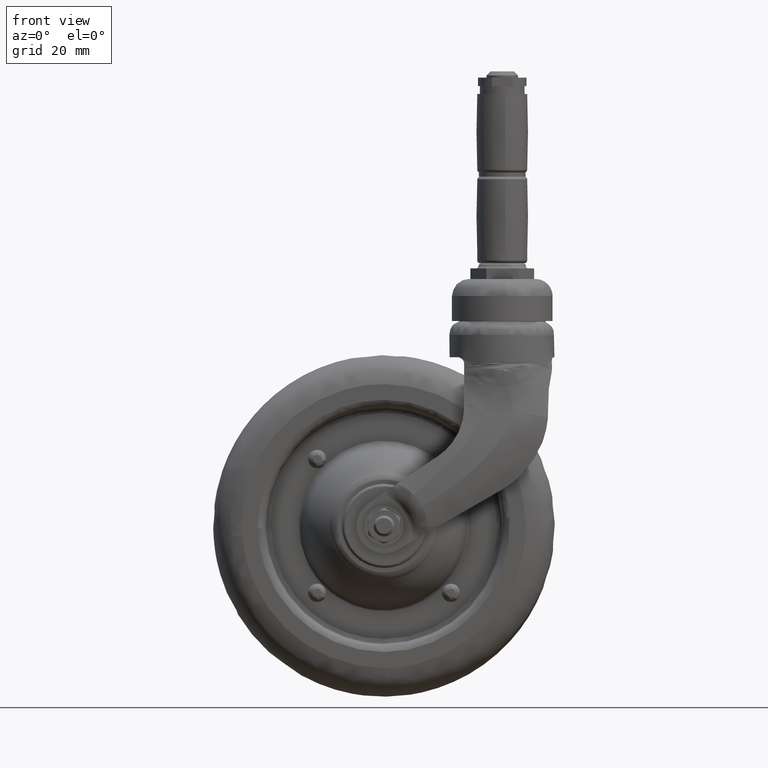
[diagram: clean part render]
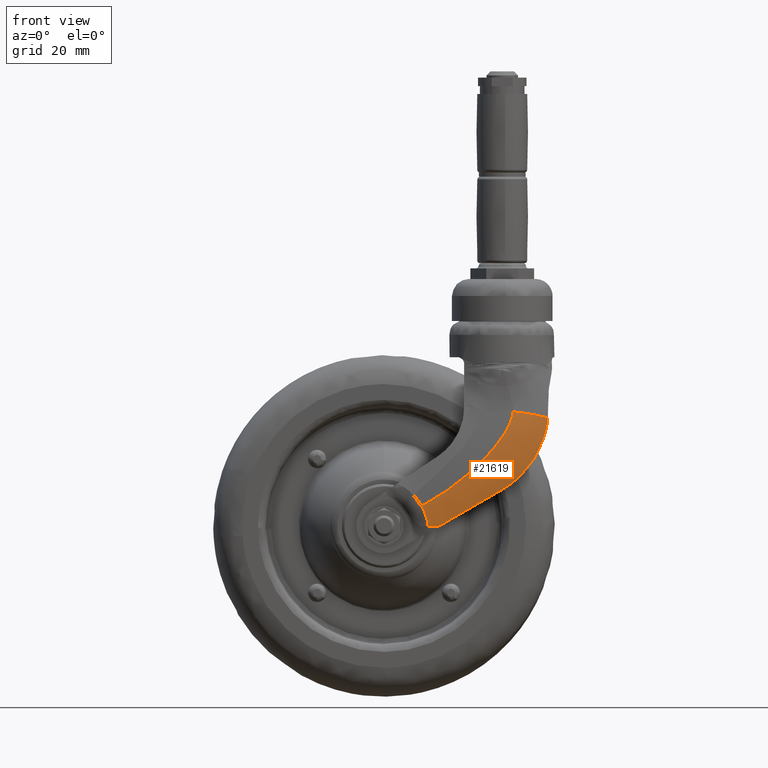
[diagram: same view with one face highlighted and labeled with its STEP entity id]
A machine part, front view. The second image highlights one B-rep face of the part: STEP entity #21619.
In plain terms, the highlighted face is a freeform B-spline surface patch.
Its self-contained STEP definition (entity closure, byte-faithful):
#19432=CARTESIAN_POINT('',(20.415976594756302,-23.865052486163901,-0.337185914948546));
#19433=VERTEX_POINT('',#19432);
#19484=CARTESIAN_POINT('',(45.0,-21.160551298550551,13.856406867544759));
#19485=VERTEX_POINT('',#19484);
#19491=CARTESIAN_POINT('',(20.415976594756302,-23.865052486163901,-0.337185914948546));
#19492=CARTESIAN_POINT('',(21.449715460071388,-23.866348664602832,0.259643507797667));
#19493=CARTESIAN_POINT('',(22.482211063196750,-23.852576439193459,0.855755132770276));
#19494=CARTESIAN_POINT('',(24.545028476371961,-23.798685500758559,2.046723342676876));
#19495=CARTESIAN_POINT('',(25.575345488718430,-23.758508639304551,2.641577157655014));
#19496=CARTESIAN_POINT('',(27.633883661476322,-23.652753079528740,3.830074746910936));
#19497=CARTESIAN_POINT('',(28.662103387305919,-23.587156993999109,4.423717692932510));
#19498=CARTESIAN_POINT('',(30.716391954542519,-23.429895989397650,5.609761771253259));
#19499=CARTESIAN_POINT('',(31.742460494124462,-23.338227412189880,6.202162729293643));
#19500=CARTESIAN_POINT('',(33.792278459912197,-23.126782480372430,7.385625704618679));
#19501=CARTESIAN_POINT('',(34.816028264834230,-23.007010715823281,7.976687940555241));
#19502=CARTESIAN_POINT('',(36.860965695597777,-22.736413440065011,9.157333137620302));
#19503=CARTESIAN_POINT('',(37.882153621946870,-22.585591571023318,9.746916272246921));
#19504=CARTESIAN_POINT('',(39.921572445646902,-22.248108484287719,10.924375299981801));
#19505=CARTESIAN_POINT('',(40.939804667803500,-22.061463323308640,11.512251957966980));
#19506=CARTESIAN_POINT('',(42.972743689713397,-21.645444694412451,12.685969870327691));
#19507=CARTESIAN_POINT('',(43.987453115458912,-21.416103053660269,13.271812640820540));
#19508=CARTESIAN_POINT('',(45.0,-21.160551298550551,13.856406867544759));
#19509=B_SPLINE_CURVE_WITH_KNOTS('',3,(#19491,#19492,#19493,#19494,#19495,#19496,#19497,#19498,#19499,#19500,#19501,#19502,#19503,#19504,#19505,#19506,#19507,#19508),.UNSPECIFIED.,.F.,.U.,(4,2,2,2,2,2,2,2,4),(0.0,0.125000000000000,0.250000000000000,0.375000000000000,0.500000000000000,0.625000000000000,0.750000000000000,0.875000000000000,1.0),.UNSPECIFIED.);
#19510=EDGE_CURVE('',#19433,#19485,#19509,.T.);
#19613=CARTESIAN_POINT('',(62.366952196205098,-16.766161363018700,41.118420051766300));
#19614=VERTEX_POINT('',#19613);
#19615=CARTESIAN_POINT('',(62.366952196205098,-16.766161363018700,41.118420051766300));
#19616=CARTESIAN_POINT('',(62.244645255823087,-17.021816798708020,39.719717770106023));
#19617=CARTESIAN_POINT('',(62.038887086209911,-17.225509760171860,38.334175742820769));
#19618=CARTESIAN_POINT('',(61.462632743878160,-17.570646936777720,35.594105800714331));
#19619=CARTESIAN_POINT('',(61.092153567125180,-17.712142712493002,34.239580322402787));
#19620=CARTESIAN_POINT('',(60.524323237998701,-17.872985926071969,32.569080850117658));
#19621=CARTESIAN_POINT('',(60.405507374761669,-17.904340622516600,32.236115363345561));
#19622=CARTESIAN_POINT('',(60.157275904479782,-17.965947855213201,31.572542430610220));
#19623=CARTESIAN_POINT('',(60.027660522471876,-17.996242128587141,31.241471414229569));
#19624=CARTESIAN_POINT('',(59.624979782341534,-18.085756753492479,30.257291142585888));
#19625=CARTESIAN_POINT('',(59.337760998762583,-18.143729260679908,29.612139452461300));
#19626=CARTESIAN_POINT('',(58.421197052905782,-18.318403385870020,27.709410261967822));
#19627=CARTESIAN_POINT('',(57.737117229612473,-18.436051079628740,26.484476661684472));
#19628=CARTESIAN_POINT('',(56.225960573782963,-18.699639368886888,24.122731968265590));
#19629=CARTESIAN_POINT('',(55.398900742132518,-18.845563771771680,22.985908987897201));
#19630=CARTESIAN_POINT('',(54.386519514185103,-19.036821740594291,21.758674543617161));
#19631=CARTESIAN_POINT('',(54.272809389235931,-19.058460918669549,21.622942202218550));
#19632=CARTESIAN_POINT('',(54.043861668669607,-19.102368167577140,21.353821506481172));
#19633=CARTESIAN_POINT('',(53.697934956014002,-19.169211495386399,20.953389013031991));
#19634=CARTESIAN_POINT('',(53.344577686781683,-19.239089345251319,20.562624638833402));
#19635=CARTESIAN_POINT('',(52.628148095656300,-19.383071786326841,19.793806369053311));
#19636=CARTESIAN_POINT('',(52.137586125143812,-19.484712237918689,19.298199320140260));
#19637=CARTESIAN_POINT('',(50.628194978329802,-19.807408145288779,17.861078559464548));
#19638=CARTESIAN_POINT('',(49.571831095539551,-20.046460344324831,16.969122070734400));
#19639=CARTESIAN_POINT('',(47.360681807768252,-20.570874971327690,15.314918088860820));
#19640=CARTESIAN_POINT('',(46.205912356221283,-20.856196972272251,14.552640691028220));
#19641=CARTESIAN_POINT('',(45.0,-21.160551298550551,13.856406867544759));
#19642=B_SPLINE_CURVE_WITH_KNOTS('',3,(#19615,#19616,#19617,#19618,#19619,#19620,#19621,#19622,#19623,#19624,#19625,#19626,#19627,#19628,#19629,#19630,#19631,#19632,#19633,#19634,#19635,#19636,#19637,#19638,#19639,#19640,#19641),.UNSPECIFIED.,.F.,.U.,(4,2,2,2,2,2,2,2,2,1,2,2,2,4),(0.0,0.124999999999999,0.249999999999998,0.281249999999998,0.312499999999998,0.374999999999999,0.499999999999999,0.625000000000000,0.640625000000000,0.656250000000000,0.687500000000000,0.750000000000000,0.875000000000000,1.0),.UNSPECIFIED.);
#19643=EDGE_CURVE('',#19614,#19485,#19642,.T.);
#21055=CARTESIAN_POINT('',(14.340232834005880,-25.932466987408350,7.506909757720430));
#21056=VERTEX_POINT('',#21055);
#21172=CARTESIAN_POINT('',(16.824663103213801,-24.679304129174000,-0.174273375091634));
#21173=VERTEX_POINT('',#21172);
#21187=CARTESIAN_POINT('',(14.340232834005899,-25.932466987408301,7.506909757720440));
#21188=CARTESIAN_POINT('',(14.674780783568490,-25.963658045048419,6.899382182002590));
#21189=CARTESIAN_POINT('',(14.980524010004279,-25.959381745148281,6.281909699237430));
#21190=CARTESIAN_POINT('',(15.534024405093669,-25.881890017400750,5.026773156759320));
#21191=CARTESIAN_POINT('',(15.781819271270400,-25.808674866862500,4.389125334215335));
#21192=CARTESIAN_POINT('',(16.051224405667892,-25.673942398282641,3.577687815009604));
#21193=CARTESIAN_POINT('',(16.103149369618670,-25.644775362143360,3.414404979523405));
#21194=CARTESIAN_POINT('',(16.202220418715580,-25.582436884776818,3.088100612958030));
#21195=CARTESIAN_POINT('',(16.249398188176830,-25.549261897912611,2.925010325648850));
#21196=CARTESIAN_POINT('',(16.383732945858231,-25.443863311364229,2.435861313877232));
#21197=CARTESIAN_POINT('',(16.463708690874849,-25.365768799985648,2.109927207219569));
#21198=CARTESIAN_POINT('',(16.603440438370690,-25.194609951814108,1.457991198874909));
#21199=CARTESIAN_POINT('',(16.663194323718290,-25.101544917140409,1.131989056794355));
#21200=CARTESIAN_POINT('',(16.760884761371301,-24.901052978743749,0.479431176603738));
#21201=CARTESIAN_POINT('',(16.798826494653131,-24.793624880434439,0.152876805476283));
#21202=CARTESIAN_POINT('',(16.824663103213801,-24.679304129174000,-0.174273375091634));
#21203=B_SPLINE_CURVE_WITH_KNOTS('',3,(#21187,#21188,#21189,#21190,#21191,#21192,#21193,#21194,#21195,#21196,#21197,#21198,#21199,#21200,#21201,#21202),.UNSPECIFIED.,.F.,.U.,(4,2,2,2,2,2,2,4),(0.0,0.249999999999999,0.499999999999998,0.562499999999998,0.624999999999998,0.749999999999999,0.874999999999999,1.0),.UNSPECIFIED.);
#21204=EDGE_CURVE('',#21056,#21173,#21203,.T.);
#21299=CARTESIAN_POINT('',(49.053775367557549,-21.404281912199661,43.729306900880097));
#21300=CARTESIAN_POINT('',(49.045030356948196,-21.422148904308084,43.639481247532878));
#21301=CARTESIAN_POINT('',(49.036285364457065,-21.440015859399050,43.549655780289591));
#21302=CARTESIAN_POINT('',(49.000048615127376,-21.514051414440697,43.177444718562711));
#21303=CARTESIAN_POINT('',(48.960704400790597,-21.569116417163400,42.898061861122727));
#21304=CARTESIAN_POINT('',(48.862685943523843,-21.677324761296351,42.344156956340122));
#21305=CARTESIAN_POINT('',(48.804003090708314,-21.730467806253930,42.069635241636803));
#21306=CARTESIAN_POINT('',(48.603766507784691,-21.887324678240674,41.252129858078320));
#21307=CARTESIAN_POINT('',(48.438296080089607,-21.988479713324132,40.715151785363027));
#21308=CARTESIAN_POINT('',(48.154379220221990,-22.135885972926932,39.918679674745576));
#21309=CARTESIAN_POINT('',(48.053535498907110,-22.184364897322986,39.654319868288937));
#21310=CARTESIAN_POINT('',(47.842760803880196,-22.279261186598809,39.132192440908696));
#21311=CARTESIAN_POINT('',(47.732689251293976,-22.325760910667771,38.873987126768888));
#21312=CARTESIAN_POINT('',(47.390187309364926,-22.462688266435332,38.106875542315045));
#21313=CARTESIAN_POINT('',(47.145553823963553,-22.550556299806296,37.605422384662852));
#21314=CARTESIAN_POINT('',(46.630182313885712,-22.720500154276639,36.618477119529814));
#21315=CARTESIAN_POINT('',(46.359400221071027,-22.802569692533389,36.133012668968540));
#21316=CARTESIAN_POINT('',(45.795924576896894,-22.961621957313501,35.175494184184494));
#21317=CARTESIAN_POINT('',(45.503209953883413,-23.038601720132320,34.703453056391105));
#21318=CARTESIAN_POINT('',(44.898838584020510,-23.187997132483819,33.770971229677393));
#21319=CARTESIAN_POINT('',(44.587170742214923,-23.260411252220521,33.310537089473854));
#21320=CARTESIAN_POINT('',(43.947095339896357,-23.401080879923551,32.399924872842909));
#21321=CARTESIAN_POINT('',(43.618423400884311,-23.469374667944592,31.949458835483068));
#21322=CARTESIAN_POINT('',(42.616650175983338,-23.667232976866252,30.620626252856738));
#21323=CARTESIAN_POINT('',(41.925758699194638,-23.790312352846485,29.761489857729973));
#21324=CARTESIAN_POINT('',(40.507240368133175,-24.021947252921841,28.085929612161401));
#21325=CARTESIAN_POINT('',(39.779545523891883,-24.130483949136735,27.269581124934302));
#21326=CARTESIAN_POINT('',(37.550097426535267,-24.437461857529879,24.874536668888258));
#21327=CARTESIAN_POINT('',(36.002467360122949,-24.617418780375566,23.349192562380619));
#21328=CARTESIAN_POINT('',(32.811022531068033,-24.938921040801489,20.410813597216809));
#21329=CARTESIAN_POINT('',(31.166995819189300,-25.080372877856391,18.998000129481913));
#21330=CARTESIAN_POINT('',(28.636050923618139,-25.268699211493846,16.954901047572687));
#21331=CARTESIAN_POINT('',(27.781506379948965,-25.327479237192144,16.286654371883003));
#21332=CARTESIAN_POINT('',(26.050415831610195,-25.437656081383039,14.976058113160104));
#21333=CARTESIAN_POINT('',(25.173054641754494,-25.489078494179473,14.333304818358213));
#21334=CARTESIAN_POINT('',(22.518091026278238,-25.632565160123193,12.452580052232300));
#21335=CARTESIAN_POINT('',(20.715169142959855,-25.714084799104825,11.259168856821569));
#21336=CARTESIAN_POINT('',(17.955257206319807,-25.818558087466634,9.571341035327814));
#21337=CARTESIAN_POINT('',(17.025983463562625,-25.850407328005812,9.025873634751090));
#21338=CARTESIAN_POINT('',(15.615783682077744,-25.894014817181560,8.237750917038346));
#21339=CARTESIAN_POINT('',(15.142992325268567,-25.907855675975057,7.980076405488314));
#21340=CARTESIAN_POINT('',(14.191206825136614,-25.934172194268594,7.476203664563943));
#21341=CARTESIAN_POINT('',(13.712879135710860,-25.946627232157073,7.230391228700426));
#21342=CARTESIAN_POINT('',(13.231925457816011,-25.958377228115076,6.991919051593960));
#21343=CARTESIAN_POINT('',(49.111639869565799,-21.405127809130256,43.725087200397070));
#21344=CARTESIAN_POINT('',(49.102851384897932,-21.423101510580462,43.634713569592712));
#21345=CARTESIAN_POINT('',(49.094062909342682,-21.441075193394145,43.544340032494866));
#21346=CARTESIAN_POINT('',(49.057645881690362,-21.515553195855730,43.169856929158939));
#21347=CARTESIAN_POINT('',(49.018116723010706,-21.570916121092779,42.888909319594468));
#21348=CARTESIAN_POINT('',(48.919664167908024,-21.679657329734695,42.332147170048977));
#21349=CARTESIAN_POINT('',(48.860732500108917,-21.733035519592345,42.056331976032631));
#21350=CARTESIAN_POINT('',(48.659691147905392,-21.890523650534810,41.235271470916082));
#21351=CARTESIAN_POINT('',(48.493608240397577,-21.992003162509363,40.696345016168131));
#21352=CARTESIAN_POINT('',(48.208738664894142,-22.139807815229538,39.897344531842570));
#21353=CARTESIAN_POINT('',(48.107570338029213,-22.188404664127837,39.632207706622083));
#21354=CARTESIAN_POINT('',(47.896144971301595,-22.283511408329129,39.108643872070147));
#21355=CARTESIAN_POINT('',(47.785746705478083,-22.330103930227018,38.849777486877613));
#21356=CARTESIAN_POINT('',(47.442266036963680,-22.467280240340259,38.080819492904276));
#21357=CARTESIAN_POINT('',(47.196981499305622,-22.555275277509452,37.578316636312124));
#21358=CARTESIAN_POINT('',(46.680330678495984,-22.725422315222065,36.589514900630171));
#21359=CARTESIAN_POINT('',(46.408919816410581,-22.807567794745580,36.103244365217414));
#21360=CARTESIAN_POINT('',(45.844212140308741,-22.966736368320770,35.144289146231053));
#21361=CARTESIAN_POINT('',(45.550893830693127,-23.043756322218925,34.671617969981078));
#21362=CARTESIAN_POINT('',(44.945339576151696,-23.193206157840084,33.738009272259156));
#21363=CARTESIAN_POINT('',(44.633092279556273,-23.265634382781332,33.277078763993231));
#21364=CARTESIAN_POINT('',(43.991880187688309,-23.406312695538020,32.365579049673329));
#21365=CARTESIAN_POINT('',(43.662650515669796,-23.474600930511432,31.914722174536159));
#21366=CARTESIAN_POINT('',(42.659240746538970,-23.672420335085803,30.584850491262770));
#21367=CARTESIAN_POINT('',(41.967309005376009,-23.795444533164343,29.725198326584000));
#21368=CARTESIAN_POINT('',(40.546779426736471,-24.026935461079276,28.048846446986545));
#21369=CARTESIAN_POINT('',(39.818113360973086,-24.135382735942891,27.232225238096767));
#21370=CARTESIAN_POINT('',(37.585806021906095,-24.442059303538912,24.836642656303198));
#21371=CARTESIAN_POINT('',(36.036367853137165,-24.621773908993635,23.311317029012663));
#21372=CARTESIAN_POINT('',(32.841327546925307,-24.942760282878950,20.373547567564927));
#21373=CARTESIAN_POINT('',(31.195512002816375,-25.083936318176491,18.961340532717923));
#21374=CARTESIAN_POINT('',(28.661781967776328,-25.271840967411087,16.919633106826719));
#21375=CARTESIAN_POINT('',(27.806280704880276,-25.330477378779246,16.251941749157684));
#21376=CARTESIAN_POINT('',(26.073203160282986,-25.440363905468814,14.942661177938803));
#21377=CARTESIAN_POINT('',(25.194843130094590,-25.491642370789066,14.300636968762849));
#21378=CARTESIAN_POINT('',(22.536849164179863,-25.634702682353421,12.422329342233372));
#21379=CARTESIAN_POINT('',(20.731900543480990,-25.715951278203548,11.230803918298699));
#21380=CARTESIAN_POINT('',(17.968877081164010,-25.820041182742532,9.546340017093391));
#21381=CARTESIAN_POINT('',(17.038547174717277,-25.851765698397728,9.002094559488691));
#21382=CARTESIAN_POINT('',(15.626726626161565,-25.895191377174303,8.215989563425989));
#21383=CARTESIAN_POINT('',(15.153386940750449,-25.908972315191111,7.959021417474432));
#21384=CARTESIAN_POINT('',(14.200483132090584,-25.935170212088014,7.456642234971411));
#21385=CARTESIAN_POINT('',(13.721579430722318,-25.947566134509035,7.211627268583617));
#21386=CARTESIAN_POINT('',(13.240062411477151,-25.959259482086861,6.973961140315112));
#21387=CARTESIAN_POINT('',(63.340077851219661,-21.613127387422253,42.687495161409316));
#21388=CARTESIAN_POINT('',(63.322416143993202,-21.657370029498292,42.462228271005344));
#21389=CARTESIAN_POINT('',(63.304749959240517,-21.701623887794170,42.236904271829282));
#21390=CARTESIAN_POINT('',(63.231498194211383,-21.885119830744046,41.302611957210829));
#21391=CARTESIAN_POINT('',(63.153759196785998,-22.014026072417568,40.635437420758116));
#21392=CARTESIAN_POINT('',(62.962369586939936,-22.254536097955310,39.372246385936002));
#21393=CARTESIAN_POINT('',(62.848780538294818,-22.366169160598773,38.776080686577323));
#21394=CARTESIAN_POINT('',(62.465848103979987,-22.680256288879832,37.073429057881405));
#21395=CARTESIAN_POINT('',(62.155155420352585,-22.862259666905782,36.051262212892631));
#21396=CARTESIAN_POINT('',(61.637510852998439,-23.108646388857139,34.626783447685732));
#21397=CARTESIAN_POINT('',(61.455854780009290,-23.186352604132011,34.169816620579816));
#21398=CARTESIAN_POINT('',(61.081099762979541,-23.333241769889341,33.292559618214817));
#21399=CARTESIAN_POINT('',(60.887732045503121,-23.402567346948853,32.871459231322653));
#21400=CARTESIAN_POINT('',(60.293361734401401,-23.600408847990202,31.651154255009576));
#21401=CARTESIAN_POINT('',(59.878000634649638,-23.718879235011666,30.894590194733635));
#21402=CARTESIAN_POINT('',(59.023353314524115,-23.936914343723227,29.461040697218742));
#21403=CARTESIAN_POINT('',(58.584037430860974,-24.036424409286777,28.784270999863679));
#21404=CARTESIAN_POINT('',(57.687882490106730,-24.221166986137856,27.490513377493119));
#21405=CARTESIAN_POINT('',(57.230985608683852,-24.306368120559220,26.873662855860442));
#21406=CARTESIAN_POINT('',(56.303310340588531,-24.465522188018504,25.686977852572873));
#21407=CARTESIAN_POINT('',(55.832503975366315,-24.539459103777723,25.117213406610603));
#21408=CARTESIAN_POINT('',(54.879247348585857,-24.678187008419499,24.015978554715929));
#21409=CARTESIAN_POINT('',(54.396428287849375,-24.742997958977636,23.484246866340271));
#21410=CARTESIAN_POINT('',(52.942394888903415,-24.924866673963852,21.947077711225770));
#21411=CARTESIAN_POINT('',(51.962469030549549,-25.030019396009948,20.995066236116603));
#21412=CARTESIAN_POINT('',(49.985312593713523,-25.217691381951397,19.196569817148831));
#21413=CARTESIAN_POINT('',(48.987999112465921,-25.300117881414831,18.350492676201274));
#21414=CARTESIAN_POINT('',(45.971132184285686,-25.521661676562946,15.938122514948706));
#21415=CARTESIAN_POINT('',(43.927086834666163,-25.635478814086799,14.495362937822920));
#21416=CARTESIAN_POINT('',(39.764089052795399,-25.819782007296698,11.860638788193951));
#21417=CARTESIAN_POINT('',(37.645461242696705,-25.889935097138952,10.669468753019336));
#21418=CARTESIAN_POINT('',(34.389962711655343,-25.971250817875145,9.068372279028090));
#21419=CARTESIAN_POINT('',(33.291456858757158,-25.994282943008265,8.566370055902008));
#21420=CARTESIAN_POINT('',(31.061808948347011,-26.033161205288394,7.631398557344921));
#21421=CARTESIAN_POINT('',(29.938172501166537,-26.049795420982289,7.188882905941550));
#21422=CARTESIAN_POINT('',(26.553966195619644,-26.092460110153151,5.944040133191120));
#21423=CARTESIAN_POINT('',(24.277251292951849,-26.111454515554897,5.220329426118545));
#21424=CARTESIAN_POINT('',(20.812211542434927,-26.129657530584709,4.327036791039880));
#21425=CARTESIAN_POINT('',(19.648861310215761,-26.133989110857378,4.061607188953467));
#21426=CARTESIAN_POINT('',(17.884696274188382,-26.137963041945909,3.725746756713186));
#21427=CARTESIAN_POINT('',(17.293409183870679,-26.138863720409852,3.624263411569885));
#21428=CARTESIAN_POINT('',(16.101928665377809,-26.139742628056755,3.446965419824914));
#21429=CARTESIAN_POINT('',(15.501116770819854,-26.139606955176291,3.373692160408483));
#21430=CARTESIAN_POINT('',(14.901049070053851,-26.139352934452422,3.308234101391540));
#21431=CARTESIAN_POINT('',(68.028229071085562,-8.476903900921597,39.704832359764588));
#21432=CARTESIAN_POINT('',(68.002884705492448,-8.522199411791700,39.439005145327179));
#21433=CARTESIAN_POINT('',(67.977540366547089,-8.567494875037010,39.173178210387043));
#21434=CARTESIAN_POINT('',(67.872520394440215,-8.755186820636256,38.071664481707366));
#21435=CARTESIAN_POINT('',(67.762885384185907,-8.877591400864301,37.291119206621609));
#21436=CARTESIAN_POINT('',(67.504527647489766,-9.102233616225259,35.825630839156211));
#21437=CARTESIAN_POINT('',(67.355762444403823,-9.204337499518694,35.140415843577358));
#21438=CARTESIAN_POINT('',(66.870650022671441,-9.496034801959512,33.198962539447933));
#21439=CARTESIAN_POINT('',(66.496780405123062,-9.671968979979667,32.054575037816470));
#21440=CARTESIAN_POINT('',(65.898567686061540,-9.931326219413775,30.476169337334358));
#21441=CARTESIAN_POINT('',(65.692185399392727,-10.016794404639052,29.972896757734862));
#21442=CARTESIAN_POINT('',(65.272373957158251,-10.185580239465521,29.011020213978703));
#21443=CARTESIAN_POINT('',(65.058616214017093,-10.269025546810223,28.551518601166862));
#21444=CARTESIAN_POINT('',(64.408612388514854,-10.517745034993341,27.224536665933641));
#21445=CARTESIAN_POINT('',(63.963662233756153,-10.681866604890605,26.408006840290390));
#21446=CARTESIAN_POINT('',(63.059315873525485,-11.006698687863683,24.867052835782765));
#21447=CARTESIAN_POINT('',(62.599841101830918,-11.167195394980697,24.142994367457053));
#21448=CARTESIAN_POINT('',(61.669743063396410,-11.485754667507967,22.762466698347691));
#21449=CARTESIAN_POINT('',(61.199072426075553,-11.643798996384806,22.106186688188529));
#21450=CARTESIAN_POINT('',(60.248142521101684,-11.958295975305909,20.845797920291229));
#21451=CARTESIAN_POINT('',(59.767863815822309,-12.114743081367484,20.241783117533185));
#21452=CARTESIAN_POINT('',(58.798483350436285,-12.426721366763935,19.075668669776714));
#21453=CARTESIAN_POINT('',(58.309017636345615,-12.582357320611278,18.513304180278766));
#21454=CARTESIAN_POINT('',(56.837756788908244,-13.045722095047422,16.888864774324098));
#21455=CARTESIAN_POINT('',(55.849812481928986,-13.351018143805916,15.884497080402207));
#21456=CARTESIAN_POINT('',(53.857639868872617,-13.959828803209838,13.989155277621794));
#21457=CARTESIAN_POINT('',(52.853394280917271,-14.263319732564161,13.098665686596000));
#21458=CARTESIAN_POINT('',(49.811768362507379,-15.177944173725532,10.563979000947597));
#21459=CARTESIAN_POINT('',(47.746043494838638,-15.793124238688119,9.053631660619654));
#21460=CARTESIAN_POINT('',(43.505080630618195,-17.068951197775153,6.324759412407889));
#21461=CARTESIAN_POINT('',(41.330873698498834,-17.729176993435981,5.106455496254070));
#21462=CARTESIAN_POINT('',(37.941220186334220,-18.784534195852586,3.525636147999928));
#21463=CARTESIAN_POINT('',(36.789368549144825,-19.147715839592962,3.040833786166466));
#21464=CARTESIAN_POINT('',(34.428252858498645,-19.901517951421088,2.171773339780541));
#21465=CARTESIAN_POINT('',(33.227758603628104,-20.277534694915563,1.776638843106160));
#21466=CARTESIAN_POINT('',(29.578407568758731,-21.392953567872215,0.725592940244198));
#21467=CARTESIAN_POINT('',(27.078847648201368,-22.121563252862295,0.198665166411914));
#21468=CARTESIAN_POINT('',(23.202334851930907,-23.161450294070402,-0.248455991604548));
#21469=CARTESIAN_POINT('',(21.889042211563066,-23.499079451448850,-0.339884060771394));
#21470=CARTESIAN_POINT('',(19.877684229816186,-23.986917382285696,-0.364626822892536));
#21471=CARTESIAN_POINT('',(19.200262065387694,-24.146424621205966,-0.353991850157385));
#21472=CARTESIAN_POINT('',(17.827613293559448,-24.458295106319650,-0.286511917682865));
#21473=CARTESIAN_POINT('',(17.130876258555027,-24.612081396187673,-0.225432239763508));
#21474=CARTESIAN_POINT('',(16.433833899094438,-24.754749926224225,-0.150745982488364));
#21475=CARTESIAN_POINT('',(68.047560795697805,-8.422736310548212,39.692533265049313));
#21476=CARTESIAN_POINT('',(68.022182284358479,-8.468043083726887,39.426540391867022));
#21477=CARTESIAN_POINT('',(67.996803826336162,-8.513349761721814,39.160548077501772));
#21478=CARTESIAN_POINT('',(67.891642757989388,-8.701087671448100,38.058352036825745));
#21479=CARTESIAN_POINT('',(67.781866515290787,-8.823493426842113,37.277346760414289));
#21480=CARTESIAN_POINT('',(67.523214417862263,-9.048124082151331,35.811039803476909));
#21481=CARTESIAN_POINT('',(67.374295661732660,-9.150214564991295,35.125465580169632));
#21482=CARTESIAN_POINT('',(66.888741355886964,-9.441884774668754,33.183049391453672));
#21483=CARTESIAN_POINT('',(66.514603651746711,-9.617820175148486,32.038167830503824));
#21484=CARTESIAN_POINT('',(65.916056880121332,-9.877240878931152,30.459133447298761));
#21485=CARTESIAN_POINT('',(65.709573495138358,-9.962739714513578,29.955670424153222));
#21486=CARTESIAN_POINT('',(65.289580502286668,-10.131604808373295,28.993443100775171));
#21487=CARTESIAN_POINT('',(65.075742027576311,-10.215098710400124,28.533780755945152));
#21488=CARTESIAN_POINT('',(64.425521871117311,-10.463988631135145,27.206347782824995));
#21489=CARTESIAN_POINT('',(63.980462609088889,-10.628257978701049,26.389557861468283));
#21490=CARTESIAN_POINT('',(63.075942200756927,-10.953432089493505,24.848127698503895));
#21491=CARTESIAN_POINT('',(62.616402248111520,-11.114122784443200,24.123853775053679));
#21492=CARTESIAN_POINT('',(61.686203795518288,-11.433107366885505,22.742921285239241));
#21493=CARTESIAN_POINT('',(61.215498003704987,-11.591383305471698,22.086452102356095));
#21494=CARTESIAN_POINT('',(60.264518389128952,-11.906375722054388,20.825701115144714));
#21495=CARTESIAN_POINT('',(59.784225200618600,-12.063086925877620,20.221513359686139));
#21496=CARTESIAN_POINT('',(58.814829828982965,-12.375622550519717,19.055063462662424));
#21497=CARTESIAN_POINT('',(58.325363765290703,-12.531552244426731,18.492536432148981));
#21498=CARTESIAN_POINT('',(56.854115528063303,-12.995835118550724,16.867622592429420));
#21499=CARTESIAN_POINT('',(55.866197709509294,-13.301790928402527,15.862955932899137));
#21500=CARTESIAN_POINT('',(53.874087726999925,-13.912010601556451,13.967036585303235));
#21501=CARTESIAN_POINT('',(52.869878597254925,-14.216252339940180,13.076268810293733));
#21502=CARTESIAN_POINT('',(49.828351713580091,-15.133281391106452,10.540774171207827));
#21503=CARTESIAN_POINT('',(47.762679572720074,-15.750249131211664,9.029926477923711));
#21504=CARTESIAN_POINT('',(43.521685659706961,-17.030109142902742,6.300187467736381));
#21505=CARTESIAN_POINT('',(41.347394818987809,-17.692593607036276,5.081517388674758));
#21506=CARTESIAN_POINT('',(37.957395101488984,-18.751800852119729,3.500390643475448));
#21507=CARTESIAN_POINT('',(36.805387701896940,-19.116361073102311,3.015528856432151));
#21508=CARTESIAN_POINT('',(34.443844997113509,-19.873118419421498,2.146486349873847));
#21509=CARTESIAN_POINT('',(33.243080250937759,-20.250649688635303,1.751430658215530));
#21510=CARTESIAN_POINT('',(29.592727525904195,-21.370702605136419,0.700884926118819));
#21511=CARTESIAN_POINT('',(27.092253689810494,-22.102471049167981,0.174635780491753));
#21512=CARTESIAN_POINT('',(23.213943676447307,-23.147033716984179,-0.270679151630929));
#21513=CARTESIAN_POINT('',(21.899975009170571,-23.486220251549820,-0.361364742521494));
#21514=CARTESIAN_POINT('',(19.887477871441906,-23.976347037265892,-0.384727121462274));
#21515=CARTESIAN_POINT('',(19.209653477838803,-24.136611689361217,-0.373585095321061));
#21516=CARTESIAN_POINT('',(17.836149727744282,-24.449977499573802,-0.304980288468421));
#21517=CARTESIAN_POINT('',(17.138955570258464,-24.604508895325516,-0.243274411020832));
#21518=CARTESIAN_POINT('',(16.441447690646957,-24.747872197212338,-0.167927750499130));
#21526=(BOUNDED_SURFACE()B_SPLINE_SURFACE(3,2,((#21299,#21343,#21387,#21431,#21475),(#21300,#21344,#21388,#21432,#21476),(#21301,#21345,#21389,#21433,#21477),(#21302,#21346,#21390,#21434,#21478),(#21303,#21347,#21391,#21435,#21479),(#21304,#21348,#21392,#21436,#21480),(#21305,#21349,#21393,#21437,#21481),(#21306,#21350,#21394,#21438,#21482),(#21307,#21351,#21395,#21439,#21483),(#21308,#21352,#21396,#21440,#21484),(#21309,#21353,#21397,#21441,#21485),(#21310,#21354,#21398,#21442,#21486),(#21311,#21355,#21399,#21443,#21487),(#21312,#21356,#21400,#21444,#21488),(#21313,#21357,#21401,#21445,#21489),(#21314,#21358,#21402,#21446,#21490),(#21315,#21359,#21403,#21447,#21491),(#21316,#21360,#21404,#21448,#21492),(#21317,#21361,#21405,#21449,#21493),(#21318,#21362,#21406,#21450,#21494),(#21319,#21363,#21407,#21451,#21495),(#21320,#21364,#21408,#21452,#21496),(#21321,#21365,#21409,#21453,#21497),(#21322,#21366,#21410,#21454,#21498),(#21323,#21367,#21411,#21455,#21499),(#21324,#21368,#21412,#21456,#21500),(#21325,#21369,#21413,#21457,#21501),(#21326,#21370,#21414,#21458,#21502),(#21327,#21371,#21415,#21459,#21503),(#21328,#21372,#21416,#21460,#21504),(#21329,#21373,#21417,#21461,#21505),(#21330,#21374,#21418,#21462,#21506),(#21331,#21375,#21419,#21463,#21507),(#21332,#21376,#21420,#21464,#21508),(#21333,#21377,#21421,#21465,#21509),(#21334,#21378,#21422,#21466,#21510),(#21335,#21379,#21423,#21467,#21511),(#21336,#21380,#21424,#21468,#21512),(#21337,#21381,#21425,#21469,#21513),(#21338,#21382,#21426,#21470,#21514),(#21339,#21383,#21427,#21471,#21515),(#21340,#21384,#21428,#21472,#21516),(#21341,#21385,#21429,#21473,#21517),(#21342,#21386,#21430,#21474,#21518)),.UNSPECIFIED.,.F.,.F.,.U.)B_SPLINE_SURFACE_WITH_KNOTS((4,2,2,2,2,2,2,2,2,2,2,2,2,2,2,2,2,2,2,2,2,4),(3,1,1,3),(0.0,0.813045028779477,3.369044161002323,5.925043293225214,11.037041557670911,13.593040689893749,16.149039822116599,21.261038086562291,26.373036351007979,31.485034615453710,36.597032879899452,41.709031144345140,51.933027673236523,62.157024202127950,82.605017259910767,103.053010317693610,113.277006846585000,123.501003375476400,143.948996433259200,154.172992962150600,159.284991226596300,164.396989491042010),(0.0,0.129574323087248,25.928946020062149,26.060339769897499),.UNSPECIFIED.)GEOMETRIC_REPRESENTATION_ITEM()RATIONAL_B_SPLINE_SURFACE(((1.001855110125222,1.000927555062611,0.815315741116395,1.000940579390665,1.001881158781330),(1.001856147966687,1.000928073983344,0.815212419497260,1.000941105597859,1.001882211195717),(1.001857185808152,1.000928592904076,0.815109097878126,1.000941631805052,1.001883263610104),(1.001861486349456,1.000930743174728,0.814680960339209,1.000943812268877,1.001887624537754),(1.001865679489430,1.000932839744715,0.814263515068398,1.000945938277996,1.001891876555991),(1.001873735003680,1.000936867501840,0.813461553686758,1.000950022591148,1.001900045182297),(1.001877596791191,1.000938798395595,0.813077095990840,1.000951980597681,1.001903961195362),(1.001887304996416,1.000943652498208,0.812110602054569,1.000956902859508,1.001913805719017),(1.001891210304792,1.000945605152396,0.811721811667792,1.000958882932024,1.001917765864048),(1.001892737774066,1.000946368887033,0.811569745476699,1.000959657390693,1.001919314781387),(1.001892557069956,1.000946278534978,0.811587735354631,1.000959565769954,1.001919131539907),(1.001890966451218,1.000945483225609,0.811746088348697,1.000958759293194,1.001917518586388),(1.001889560839157,1.000944780419579,0.811886023125718,1.000958046618665,1.001916093237329),(1.001883767677881,1.000941883838940,0.812462757456702,1.000955109365490,1.001910218730981),(1.001877753692609,1.000938876846305,0.813061475774121,1.000952060149961,1.001904120299922),(1.001862957510947,1.000931478755474,0.814534499832089,1.000944558178330,1.001889116356660),(1.001854194917331,1.000927097458665,0.815406854031417,1.000940115361242,1.001880230722484),(1.001834622313953,1.000917311156977,0.817355391587196,1.000930191644527,1.001860383289054),(1.001823808717218,1.000911904358609,0.818431932042590,1.000924708926229,1.001849417852457),(1.001800566619257,1.000900283309629,0.820745783699376,1.000912924699492,1.001825849398984),(1.001788135798301,1.000894067899151,0.821983325840021,1.000906622014901,1.001813244029802),(1.001761940687707,1.000880970343854,0.824591162712222,1.000893340549383,1.001786681098765),(1.001748163090164,1.000874081545082,0.825962782303349,1.000886355021071,1.001772710042141),(1.001705403175067,1.000852701587533,0.830219717308046,1.000864674855381,1.001729349710762),(1.001674928597678,1.000837464298839,0.833253593660344,1.000849223611252,1.001698447222504),(1.001610901833523,1.000805450916761,0.839627735726573,1.000816760711074,1.001633521422147),(1.001577336515690,1.000788668257845,0.842969308695210,1.000799742397300,1.001599484794600),(1.001472462089637,1.000736231044819,0.853410012666366,1.000746568883549,1.001493137767099),(1.001397048678218,1.000698524339109,0.860917744853482,1.000708332716545,1.001416665433089),(1.001234747932247,1.000617373966124,0.877075488039884,1.000626042865029,1.001252085730058),(1.001147858635477,1.000573929317739,0.885725694386573,1.000581988185632,1.001163976371265),(1.001006536796903,1.000503268398451,0.899794896352666,1.000510335076199,1.001020670152398),(1.000957512708653,1.000478756354326,0.904675456963510,1.000485478844525,1.000970957689049),(1.000855279286034,1.000427639643017,0.914853237588393,1.000433644374406,1.000867288748812),(1.000804197817724,1.000402098908862,0.919938619307347,1.000407745008280,1.000815490016560),(1.000652631113306,1.000326315556653,0.935027742101919,1.000330897538931,1.000661795077862),(1.000553608284984,1.000276804142492,0.944885894139629,1.000280690906851,1.000561381813703),(1.000412465960948,1.000206232980474,0.958937224654901,1.000209128815020,1.000418257630039),(1.000366665693313,1.000183332846656,0.963496839941297,1.000185907127402,1.000371814254804),(1.000300429461003,1.000150214730502,0.970090944145161,1.000152323980946,1.000304647961893),(1.000278761323209,1.000139380661604,0.972248101240886,1.000141337784728,1.000282675569455),(1.000236333968027,1.000118166984013,0.976471928463679,1.000119826233827,1.000239652467654),(1.000215385581321,1.000107692790661,0.978557431216790,1.000109204966370,1.000218409932739),(1.000195893734089,1.000097946867044,0.980497929148138,1.000099322194698,1.000198644389397)))REPRESENTATION_ITEM('')SURFACE());
#21527=ORIENTED_EDGE('',*,*,#19643,.F.);
#21528=CARTESIAN_POINT('',(49.143115778760396,-21.460217302238799,43.448091829986900));
#21529=VERTEX_POINT('',#21528);
#21530=CARTESIAN_POINT('',(49.143115778760396,-21.460217302238799,43.448091829986900));
#21531=CARTESIAN_POINT('',(56.712198262451942,-21.613093153967789,42.679318348191238));
#21532=CARTESIAN_POINT('',(62.366952196205098,-16.766161363018700,41.118420051766300));
#21540=(BOUNDED_CURVE()B_SPLINE_CURVE(2,(#21530,#21531,#21532),.UNSPECIFIED.,.F.,.U.)CURVE()GEOMETRIC_REPRESENTATION_ITEM()QUASI_UNIFORM_CURVE()RATIONAL_B_SPLINE_CURVE((1.0,0.934635163372556,1.0))REPRESENTATION_ITEM(''));
#21541=EDGE_CURVE('',#21529,#19614,#21540,.T.);
#21542=ORIENTED_EDGE('',*,*,#21541,.F.);
#21543=CARTESIAN_POINT('',(14.340232834005880,-25.932466987408350,7.506909757720430));
#21544=CARTESIAN_POINT('',(14.818987725253971,-25.919752145087479,7.754564627904614));
#21545=CARTESIAN_POINT('',(15.294643693106050,-25.906351158057920,8.008367046169198));
#21546=CARTESIAN_POINT('',(16.239089951751360,-25.878207594249499,8.525765604186315));
#21547=CARTESIAN_POINT('',(16.708115273979580,-25.863458094743809,8.789502235167635));
#21548=CARTESIAN_POINT('',(18.106534539659808,-25.817122360937169,9.594331961969489));
#21549=CARTESIAN_POINT('',(19.027320459139681,-25.783451813241172,10.148967725623530));
#21550=CARTESIAN_POINT('',(20.848699050598519,-25.710137852000681,11.289937085986841));
#21551=CARTESIAN_POINT('',(21.749258698074069,-25.670493218486111,11.876323085560090));
#21552=CARTESIAN_POINT('',(23.531503701365651,-25.584722358245251,13.078663268222400));
#21553=CARTESIAN_POINT('',(24.413178797898919,-25.538596358399090,13.694633770550430));
#21554=CARTESIAN_POINT('',(25.721946834854339,-25.464105382093010,14.640083258726840));
#21555=CARTESIAN_POINT('',(26.155828303004888,-25.438393735665329,14.958774521243770));
#21556=CARTESIAN_POINT('',(27.017092318728789,-25.385245140349930,15.601847221881689));
#21557=CARTESIAN_POINT('',(27.444711158434050,-25.357794043584288,15.926409804682731));
#21558=CARTESIAN_POINT('',(28.718672460988071,-25.272715789272979,16.909015536130571));
#21559=CARTESIAN_POINT('',(29.556167483831469,-25.212368796761179,17.575927668924422));
#21560=CARTESIAN_POINT('',(31.207568585873720,-25.083841784716910,18.933331039627479));
#21561=CARTESIAN_POINT('',(32.021467575292100,-25.015662478476489,19.623829719314390));
#21562=CARTESIAN_POINT('',(33.624735334210477,-24.870764488239431,21.029301501322468));
#21563=CARTESIAN_POINT('',(34.414104737415450,-24.794047291442830,21.744274117941352));
#21564=CARTESIAN_POINT('',(35.966513765690841,-24.631204777353080,23.200461203070581));
#21565=CARTESIAN_POINT('',(36.729560199287683,-24.545081991693220,23.941668897225700));
#21566=CARTESIAN_POINT('',(38.226551484398676,-24.362338347243352,25.453077167645329));
#21567=CARTESIAN_POINT('',(38.960511459899003,-24.265721846526329,26.223262549392562));
#21568=CARTESIAN_POINT('',(40.395268872447332,-24.060580042490152,27.796678256338890));
#21569=CARTESIAN_POINT('',(41.096097008622110,-23.952062791396799,28.599877647378111));
#21570=CARTESIAN_POINT('',(42.458589620083842,-23.721210944397001,30.245329736714229));
#21571=CARTESIAN_POINT('',(43.120320810210117,-23.598893005764619,31.087515112007310));
#21572=CARTESIAN_POINT('',(43.917195946861973,-23.435639615363758,32.170488549988647));
#21573=CARTESIAN_POINT('',(44.075093200623392,-23.402456267382750,32.388681443801403));
#21574=CARTESIAN_POINT('',(44.386618732310559,-23.335216803808390,32.826859688150897));
#21575=CARTESIAN_POINT('',(44.540370839771640,-23.301136031833401,33.047010186752601));
#21576=CARTESIAN_POINT('',(44.995269604065953,-23.197455487343269,33.710820952668293));
#21577=CARTESIAN_POINT('',(45.290077495324510,-23.126420067835500,34.157830280678773));
#21578=CARTESIAN_POINT('',(45.860656295885299,-22.980172022277749,35.061929559536047));
#21579=CARTESIAN_POINT('',(46.136437600826902,-22.904960750681688,35.519013850411682));
#21580=CARTESIAN_POINT('',(46.666134544839352,-22.749917456102921,36.444790590170349));
#21581=CARTESIAN_POINT('',(46.920069407365659,-22.670087901063141,36.913472566577227));
#21582=CARTESIAN_POINT('',(47.402102425243271,-22.505211807690930,37.864593531679184));
#21583=CARTESIAN_POINT('',(47.630239467615297,-22.420170201416269,38.347011325556892));
#21584=CARTESIAN_POINT('',(47.948625145330460,-22.288055715361011,39.083364304693298));
#21585=CARTESIAN_POINT('',(48.050765190451898,-22.243256458568460,39.330946436171203));
#21586=CARTESIAN_POINT('',(48.197191237948502,-22.174804299450660,39.705951374156562));
#21587=CARTESIAN_POINT('',(48.244883651725580,-22.151768049832061,39.831611241308948));
#21588=CARTESIAN_POINT('',(48.337522855659209,-22.105419509006190,40.083342189955808));
#21589=CARTESIAN_POINT('',(48.382510062744721,-22.082089043664968,40.209513329967152));
#21590=CARTESIAN_POINT('',(48.600390470686037,-21.964630354032519,40.841991632001488));
#21591=CARTESIAN_POINT('',(48.752407563729662,-21.868099816892379,41.353096586444252));
#21592=CARTESIAN_POINT('',(48.936390888543677,-21.718795032326771,42.129982729781702));
#21593=CARTESIAN_POINT('',(48.990322435637673,-21.668272073546081,42.390663012645973));
#21594=CARTESIAN_POINT('',(49.080704445270023,-21.565552706492671,42.916105716768527));
#21595=CARTESIAN_POINT('',(49.117158317702732,-21.513356581330971,43.180867333483128));
#21596=CARTESIAN_POINT('',(49.143115778760396,-21.460217302238799,43.448091829986900));
#21597=B_SPLINE_CURVE_WITH_KNOTS('',3,(#21543,#21544,#21545,#21546,#21547,#21548,#21549,#21550,#21551,#21552,#21553,#21554,#21555,#21556,#21557,#21558,#21559,#21560,#21561,#21562,#21563,#21564,#21565,#21566,#21567,#21568,#21569,#21570,#21571,#21572,#21573,#21574,#21575,#21576,#21577,#21578,#21579,#21580,#21581,#21582,#21583,#21584,#21585,#21586,#21587,#21588,#21589,#21590,#21591,#21592,#21593,#21594,#21595,#21596),.UNSPECIFIED.,.F.,.U.,(4,2,2,2,2,2,2,2,2,2,2,2,2,2,2,2,2,2,2,2,2,2,2,2,2,2,4),(0.0,0.031250000000000,0.062500000000000,0.125000000000000,0.187500000000001,0.250000000000001,0.281250000000001,0.312500000000001,0.375000000000001,0.437500000000001,0.500000000000001,0.562500000000001,0.625000000000001,0.687500000000002,0.750000000000002,0.765625000000001,0.781250000000001,0.812500000000001,0.843750000000000,0.875000000000000,0.906249999999999,0.921874999999999,0.929687499999999,0.937499999999999,0.968749999999999,0.984375000000000,1.0),.UNSPECIFIED.);
#21598=EDGE_CURVE('',#21056,#21529,#21597,.T.);
#21599=ORIENTED_EDGE('',*,*,#21598,.F.);
#21600=ORIENTED_EDGE('',*,*,#21204,.T.);
#21601=CARTESIAN_POINT('',(20.415976594756302,-23.865052486163901,-0.337185914948546));
#21602=CARTESIAN_POINT('',(19.822030359284060,-24.007995746918439,-0.342843389007107));
#21603=CARTESIAN_POINT('',(19.224995664171821,-24.147895049516301,-0.333505344727547));
#21604=CARTESIAN_POINT('',(18.474251803371949,-24.318463319216221,-0.300077449684799));
#21605=CARTESIAN_POINT('',(18.323838553112729,-24.352369966930141,-0.292294599656174));
#21606=CARTESIAN_POINT('',(18.023453247138431,-24.419536275951881,-0.274505099292584));
#21607=CARTESIAN_POINT('',(17.873373872572792,-24.452820512912091,-0.264494472429947));
#21608=CARTESIAN_POINT('',(17.573450463493490,-24.518776992366149,-0.242165809947563));
#21609=CARTESIAN_POINT('',(17.423629825985920,-24.551484304094650,-0.229733945591377));
#21610=CARTESIAN_POINT('',(17.124128997962231,-24.616114507728909,-0.202988092185496));
#21611=CARTESIAN_POINT('',(16.974388806152270,-24.647948254823639,-0.188966966935553));
#21612=CARTESIAN_POINT('',(16.824663103213801,-24.679304129174000,-0.174273375091634));
#21613=B_SPLINE_CURVE_WITH_KNOTS('',3,(#21601,#21602,#21603,#21604,#21605,#21606,#21607,#21608,#21609,#21610,#21611,#21612),.UNSPECIFIED.,.F.,.U.,(4,2,2,2,2,4),(0.0,0.500000000000000,0.625000000000000,0.750000000000000,0.875000000000000,1.0),.UNSPECIFIED.);
#21614=EDGE_CURVE('',#19433,#21173,#21613,.T.);
#21615=ORIENTED_EDGE('',*,*,#21614,.F.);
#21616=ORIENTED_EDGE('',*,*,#19510,.T.);
#21617=EDGE_LOOP('',(#21527,#21542,#21599,#21600,#21615,#21616));
#21618=FACE_OUTER_BOUND('',#21617,.T.);
#21619=ADVANCED_FACE('',(#21618),#21526,.T.);